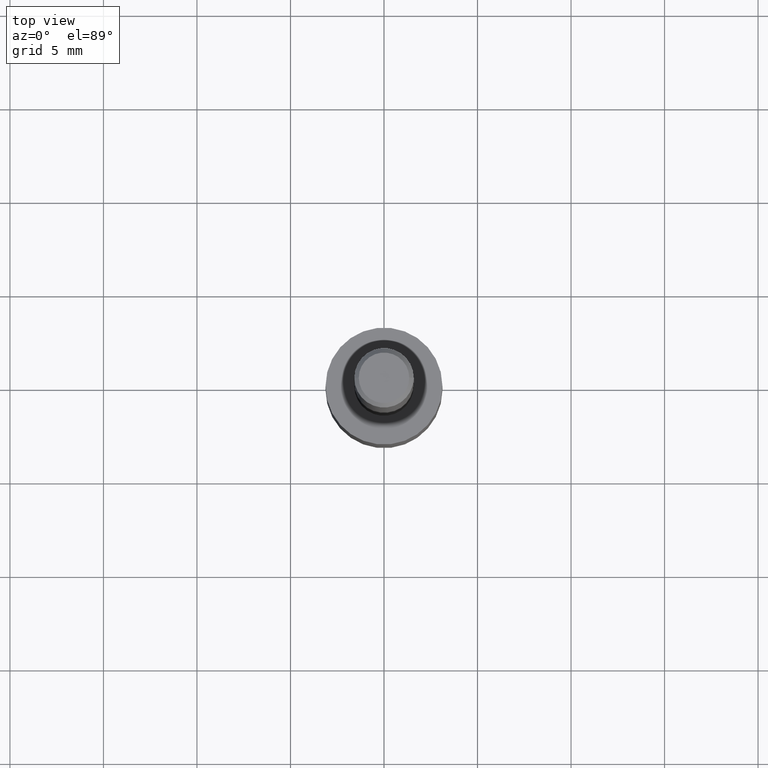
[diagram: clean part render]
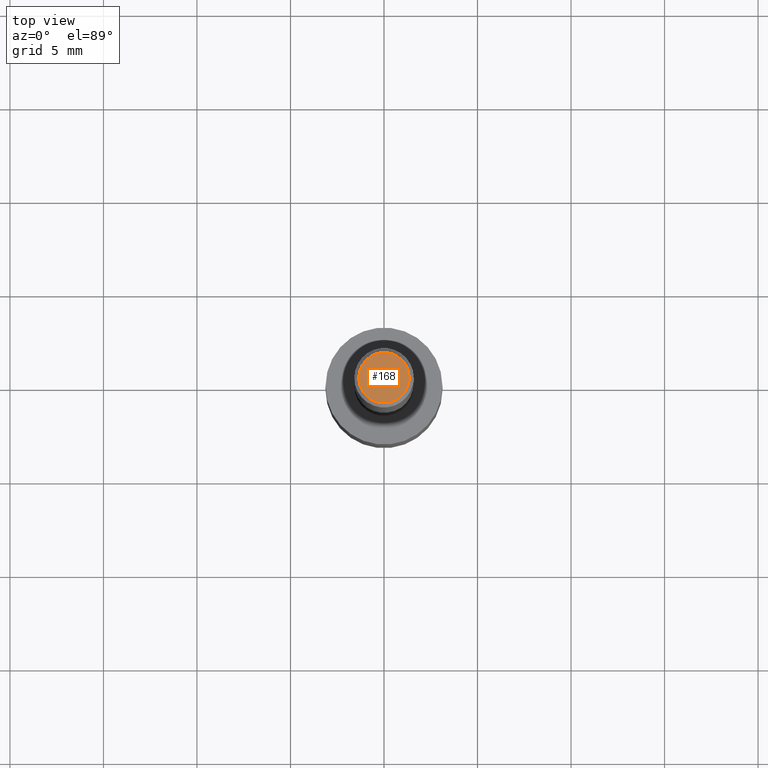
[diagram: same view with one face highlighted and labeled with its STEP entity id]
A machine part, top view. The second image highlights one B-rep face of the part: STEP entity #168.
In plain terms, the highlighted planar face has unit normal (0, -0, -1).
Its self-contained STEP definition (entity closure, byte-faithful):
#4 = CIRCLE ( 'NONE', #196, 0.05312499999999999861 ) ;
#9 = CARTESIAN_POINT ( 'NONE',  ( -7.487088864773345706E-50, 1.068957861474247695E-35, 3.061616997868395197E-21 ) ) ;
#14 = EDGE_CURVE ( 'NONE', #75, #244, #72, .T. ) ;
#15 = CARTESIAN_POINT ( 'NONE',  ( -3.743544432386672853E-50, 5.344789307371238476E-36, 1.530808498934197599E-21 ) ) ;
#58 = DIRECTION ( 'NONE',  ( 1.000000000000000000, -6.982962677686266711E-15, 4.876176628004948512E-29 ) ) ;
#62 = CARTESIAN_POINT ( 'NONE',  ( 0.05312499999999999861, -4.129888592719939842E-16, 3.061617000609493422E-21 ) ) ;
#72 = CIRCLE ( 'NONE', #322, 0.05312499999999999861 ) ;
#75 = VERTEX_POINT ( 'NONE', #62 ) ;
#119 = AXIS2_PLACEMENT_3D ( 'NONE', #15, #177, #260 ) ;
#149 = PLANE ( 'NONE',  #119 ) ;
#167 = DIRECTION ( 'NONE',  ( -2.445468806185136597E-29, 3.491481338843145583E-15, 1.000000000000000000 ) ) ;
#168 = ADVANCED_FACE ( 'NONE', ( #308 ), #149, .F. ) ;
#177 = DIRECTION ( 'NONE',  ( 2.438088387897960049E-29, -3.491481338843145188E-15, -1.000000000000000000 ) ) ;
#181 = ORIENTED_EDGE ( 'NONE', *, *, #300, .T. ) ;
#196 = AXIS2_PLACEMENT_3D ( 'NONE', #335, #201, #337 ) ;
#201 = DIRECTION ( 'NONE',  ( -2.445468806185136597E-29, 3.491481338843145583E-15, 1.000000000000000000 ) ) ;
#215 = ORIENTED_EDGE ( 'NONE', *, *, #14, .T. ) ;
#244 = VERTEX_POINT ( 'NONE', #316 ) ;
#260 = DIRECTION ( 'NONE',  ( -1.000000000000000000, 6.982962677686265922E-15, -4.876176775795935793E-29 ) ) ;
#267 = EDGE_LOOP ( 'NONE', ( #181, #215 ) ) ;
#300 = EDGE_CURVE ( 'NONE', #244, #75, #4, .T. ) ;
#308 = FACE_OUTER_BOUND ( 'NONE', #267, .T. ) ;
#316 = CARTESIAN_POINT ( 'NONE',  ( -0.05312499999999999861, 3.873362110279099094E-16, 3.061616995216862494E-21 ) ) ;
#322 = AXIS2_PLACEMENT_3D ( 'NONE', #9, #167, #58 ) ;
#335 = CARTESIAN_POINT ( 'NONE',  ( -7.487088864773345706E-50, 1.068957861474247695E-35, 3.061616997868395197E-21 ) ) ;
#337 = DIRECTION ( 'NONE',  ( 1.000000000000000000, -6.982962677686266711E-15, 4.876176628004948512E-29 ) ) ;